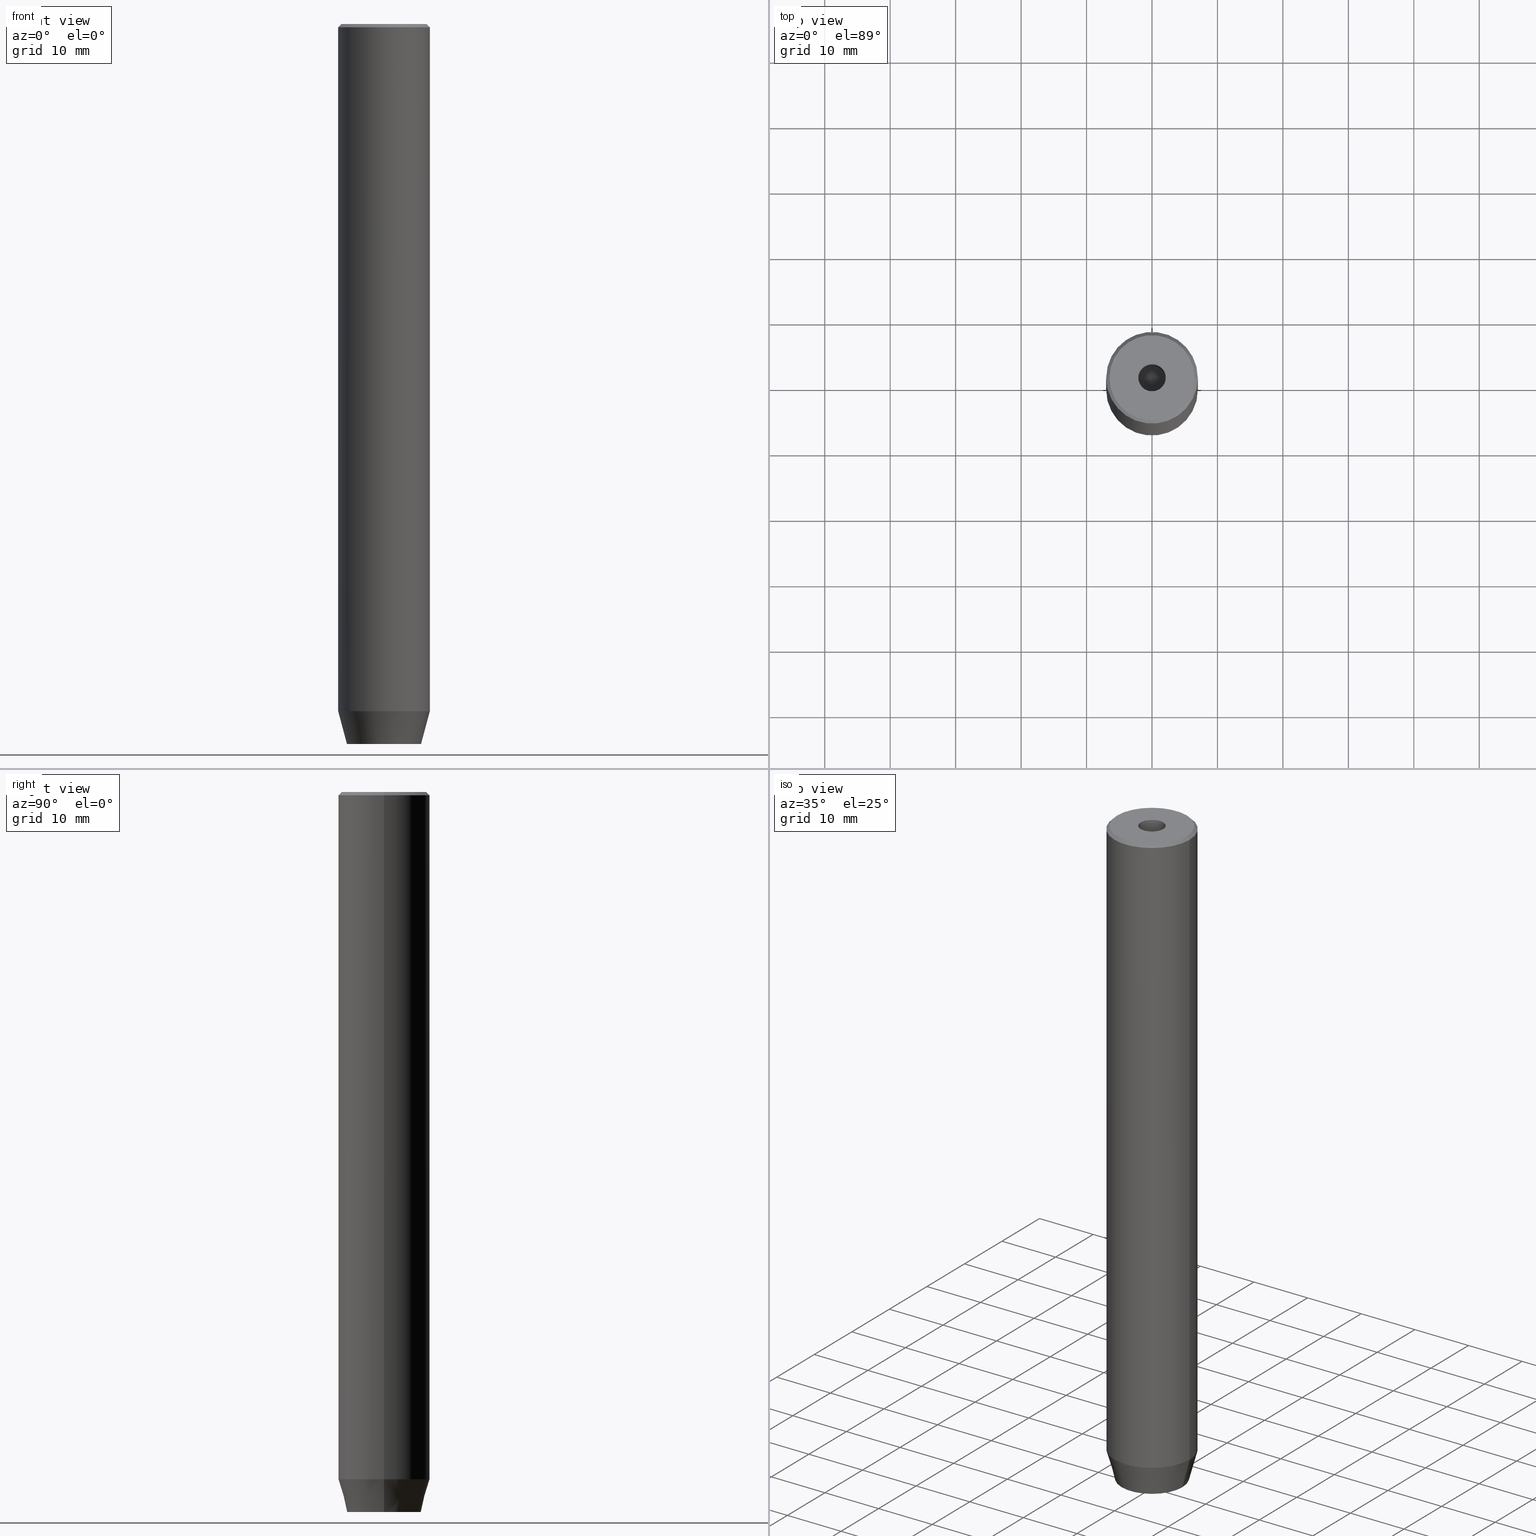
[diagram: canonical four-view strip — front | top / right | iso, engineering-drawing reading convention]
A machine part, canonical four-view strip (front | top / right | iso — engineering-drawing reading convention). The complete STEP part file that produces these views, byte-faithful:
ISO-10303-21;
HEADER;
FILE_DESCRIPTION (( 'STEP AP203' ),
    '1' );
FILE_NAME ('fff1.STEP',
    '2024-01-02T21:52:50',
    ( '' ),
    ( '' ),
    'SwSTEP 2.0',
    'SolidWorks 2019',
    '' );
FILE_SCHEMA (( 'CONFIG_CONTROL_DESIGN' ));
ENDSEC;

DATA;
#1 = DIRECTION ( 'NONE',  ( 0.2588190451025213501, 0.000000000000000000, 0.9659258262890680902 ) ) ;
#2 = PRODUCT_RELATED_PRODUCT_CATEGORY ( 'detail', '', ( #445 ) ) ;
#3 = DATE_AND_TIME ( #380, #549 ) ;
#4 = ORIENTED_EDGE ( 'NONE', *, *, #92, .F. ) ;
#5 = DIRECTION ( 'NONE',  ( -0.000000000000000000, -0.000000000000000000, 1.000000000000000000 ) ) ;
#6 = APPROVAL_ROLE ( '' ) ;
#7 = EDGE_LOOP ( 'NONE', ( #82, #316, #80, #175 ) ) ;
#8 = VECTOR ( 'NONE', #121, 1000.000000000000000 ) ;
#9 = LOCAL_TIME ( 22, 52, 50.00000000000000000, #542 ) ;
#10 = FACE_OUTER_BOUND ( 'NONE', #403, .T. ) ;
#11 = CALENDAR_DATE ( 2024, 2, 1 ) ;
#12 = ADVANCED_FACE ( 'NONE', ( #448 ), #134, .F. ) ;
#13 = ORIENTED_EDGE ( 'NONE', *, *, #307, .T. ) ;
#14 = CARTESIAN_POINT ( 'NONE',  ( 0.000000000000000000, 0.000000000000000000, -105.0000000000000142 ) ) ;
#15 = PERSON_AND_ORGANIZATION ( #174, #524 ) ;
#16 = DIRECTION ( 'NONE',  ( -0.000000000000000000, -0.000000000000000000, 1.000000000000000000 ) ) ;
#17 = ORIENTED_EDGE ( 'NONE', *, *, #520, .F. ) ;
#18 = CARTESIAN_POINT ( 'NONE',  ( -7.000000000000000000, 8.572527594031473190E-16, 0.000000000000000000 ) ) ;
#19 = ORIENTED_EDGE ( 'NONE', *, *, #132, .F. ) ;
#20 = EDGE_CURVE ( 'NONE', #581, #71, #323, .T. ) ;
#21 = DIRECTION ( 'NONE',  ( -0.000000000000000000, -0.000000000000000000, 1.000000000000000000 ) ) ;
#22 = VECTOR ( 'NONE', #5, 1000.000000000000000 ) ;
#23 = EDGE_LOOP ( 'NONE', ( #488, #108 ) ) ;
#24 = LINE ( 'NONE', #154, #487 ) ;
#25 = DIRECTION ( 'NONE',  ( -0.000000000000000000, -0.000000000000000000, 1.000000000000000000 ) ) ;
#26 = EDGE_LOOP ( 'NONE', ( #360, #408, #255, #469 ) ) ;
#27 = CARTESIAN_POINT ( 'NONE',  ( -1.250000000000000444, 2.165063509461097269, -110.0000000000000142 ) ) ;
#28 = DIRECTION ( 'NONE',  ( 1.000000000000000000, 0.000000000000000000, 0.000000000000000000 ) ) ;
#29 = DIRECTION ( 'NONE',  ( -0.8660254037844387076, 0.4999999999999998890, 0.000000000000000000 ) ) ;
#30 = DIRECTION ( 'NONE',  ( -0.000000000000000000, -0.000000000000000000, -1.000000000000000000 ) ) ;
#31 = AXIS2_PLACEMENT_3D ( 'NONE', #212, #302, #203 ) ;
#32 = ADVANCED_FACE ( 'NONE', ( #456 ), #503, .F. ) ;
#33 = APPLICATION_PROTOCOL_DEFINITION ( 'international standard', 'config_control_design', 1994, #489 ) ;
#34 = CARTESIAN_POINT ( 'NONE',  ( 0.000000000000000000, 0.000000000000000000, 0.000000000000000000 ) ) ;
#35 = DESIGN_CONTEXT ( 'detailed design', #181, 'design' ) ;
#36 = FACE_OUTER_BOUND ( 'NONE', #67, .T. ) ;
#37 = ADVANCED_FACE ( 'NONE', ( #185 ), #139, .T. ) ;
#38 = CIRCLE ( 'NONE', #356, 6.499999999999992006 ) ;
#39 = ORIENTED_EDGE ( 'NONE', *, *, #447, .T. ) ;
#40 = VERTEX_POINT ( 'NONE', #287 ) ;
#41 = EDGE_CURVE ( 'NONE', #116, #462, #470, .T. ) ;
#42 = EDGE_LOOP ( 'NONE', ( #300, #378, #205, #60 ) ) ;
#43 = CARTESIAN_POINT ( 'NONE',  ( 0.000000000000000000, 0.000000000000000000, -15.00000000000000000 ) ) ;
#44 = CONICAL_SURFACE ( 'NONE', #75, 7.000000000000000000, 0.2617993877991500740 ) ;
#45 = CC_DESIGN_APPROVAL ( #339, ( #383 ) ) ;
#46 = DIRECTION ( 'NONE',  ( 0.000000000000000000, 0.000000000000000000, 1.000000000000000000 ) ) ;
#47 = COORDINATED_UNIVERSAL_TIME_OFFSET ( 1, 0, .AHEAD. ) ;
#48 = DIRECTION ( 'NONE',  ( 0.5000000000000000000, -0.8660254037844387076, 0.000000000000000000 ) ) ;
#49 = CARTESIAN_POINT ( 'NONE',  ( 0.000000000000000000, 0.000000000000000000, 0.000000000000000000 ) ) ;
#50 = FACE_OUTER_BOUND ( 'NONE', #104, .T. ) ;
#51 = ADVANCED_FACE ( 'NONE', ( #418 ), #66, .T. ) ;
#52 = PERSON_AND_ORGANIZATION ( #174, #524 ) ;
#53 = ORIENTED_EDGE ( 'NONE', *, *, #535, .T. ) ;
#54 = AXIS2_PLACEMENT_3D ( 'NONE', #43, #585, #463 ) ;
#55 = CARTESIAN_POINT ( 'NONE',  ( 7.000000000000000000, 0.000000000000000000, -0.5000000000000186517 ) ) ;
#56 = ORIENTED_EDGE ( 'NONE', *, *, #123, .T. ) ;
#57 = CARTESIAN_POINT ( 'NONE',  ( 2.500000000000000000, 1.443375672974064328, -110.0000000000000142 ) ) ;
#58 = CARTESIAN_POINT ( 'NONE',  ( -2.500000000000000444, -1.443375672974064328, -110.0000000000000142 ) ) ;
#59 = EDGE_CURVE ( 'NONE', #153, #346, #473, .T. ) ;
#60 = ORIENTED_EDGE ( 'NONE', *, *, #330, .T. ) ;
#61 = FACE_OUTER_BOUND ( 'NONE', #442, .T. ) ;
#62 = DIRECTION ( 'NONE',  ( 1.000000000000000000, 0.000000000000000000, 0.000000000000000000 ) ) ;
#63 = VERTEX_POINT ( 'NONE', #58 ) ;
#64 = CARTESIAN_POINT ( 'NONE',  ( -6.499999999999992006, 0.000000000000000000, 0.000000000000000000 ) ) ;
#65 = VECTOR ( 'NONE', #193, 1000.000000000000000 ) ;
#66 = CYLINDRICAL_SURFACE ( 'NONE', #486, 7.000000000000000000 ) ;
#67 = EDGE_LOOP ( 'NONE', ( #19, #265, #267, #428 ) ) ;
#68 = DIRECTION ( 'NONE',  ( 1.000000000000000000, 0.000000000000000000, 0.000000000000000000 ) ) ;
#69 = ADVANCED_BREP_SHAPE_REPRESENTATION ( 'fff1', ( #293, #493 ), #190 ) ;
#70 = DIRECTION ( 'NONE',  ( 1.000000000000000000, 0.000000000000000000, 0.000000000000000000 ) ) ;
#71 = VERTEX_POINT ( 'NONE', #294 ) ;
#72 = DIRECTION ( 'NONE',  ( 0.8660254037844385966, -0.5000000000000001110, 0.000000000000000000 ) ) ;
#73 = ADVANCED_FACE ( 'NONE', ( #506, #103 ), #291, .T. ) ;
#74 = PLANE ( 'NONE',  #443 ) ;
#75 = AXIS2_PLACEMENT_3D ( 'NONE', #14, #236, #453 ) ;
#76 = AXIS2_PLACEMENT_3D ( 'NONE', #179, #365, #540 ) ;
#77 = CYLINDRICAL_SURFACE ( 'NONE', #269, 7.000000000000000000 ) ;
#78 = EDGE_CURVE ( 'NONE', #338, #320, #249, .T. ) ;
#79 = CARTESIAN_POINT ( 'NONE',  ( 0.000000000000000000, 0.000000000000000000, -107.2000000000000171 ) ) ;
#80 = ORIENTED_EDGE ( 'NONE', *, *, #102, .T. ) ;
#81 = CC_DESIGN_APPROVAL ( #425, ( #270 ) ) ;
#82 = ORIENTED_EDGE ( 'NONE', *, *, #117, .F. ) ;
#83 = DATE_AND_TIME ( #508, #454 ) ;
#84 = ORIENTED_EDGE ( 'NONE', *, *, #78, .T. ) ;
#85 = DIRECTION ( 'NONE',  ( -0.000000000000000000, 0.000000000000000000, -1.000000000000000000 ) ) ;
#86 = SECURITY_CLASSIFICATION_LEVEL ( 'unclassified' ) ;
#87 = DIRECTION ( 'NONE',  ( -0.8660254037844387076, -0.5000000000000001110, 0.000000000000000000 ) ) ;
#88 = AXIS2_PLACEMENT_3D ( 'NONE', #49, #412, #195 ) ;
#89 = FACE_OUTER_BOUND ( 'NONE', #318, .T. ) ;
#90 = PERSON_AND_ORGANIZATION_ROLE ( 'design_owner' ) ;
#91 = CARTESIAN_POINT ( 'NONE',  ( 1.249999999999999778, -2.165063509461096380, -107.2000000000000171 ) ) ;
#92 = EDGE_CURVE ( 'NONE', #346, #340, #381, .T. ) ;
#93 = FACE_OUTER_BOUND ( 'NONE', #42, .T. ) ;
#94 = PERSON_AND_ORGANIZATION_ROLE ( 'creator' ) ;
#95 = CARTESIAN_POINT ( 'NONE',  ( 2.500000000000000000, 0.000000000000000000, -110.0000000000000142 ) ) ;
#96 = ORIENTED_EDGE ( 'NONE', *, *, #421, .F. ) ;
#97 = FACE_OUTER_BOUND ( 'NONE', #536, .T. ) ;
#98 = EDGE_LOOP ( 'NONE', ( #334, #382, #422, #280 ) ) ;
#99 = AXIS2_PLACEMENT_3D ( 'NONE', #555, #559, #124 ) ;
#100 = VECTOR ( 'NONE', #161, 1000.000000000000000 ) ;
#101 = DIRECTION ( 'NONE',  ( -0.000000000000000000, -0.000000000000000000, -1.000000000000000000 ) ) ;
#102 = EDGE_CURVE ( 'NONE', #495, #391, #110, .T. ) ;
#103 = FACE_OUTER_BOUND ( 'NONE', #23, .T. ) ;
#104 = EDGE_LOOP ( 'NONE', ( #580, #314 ) ) ;
#105 = DIRECTION ( 'NONE',  ( -0.000000000000000000, -0.000000000000000000, 1.000000000000000000 ) ) ;
#106 = DIRECTION ( 'NONE',  ( -0.000000000000000000, -0.000000000000000000, 1.000000000000000000 ) ) ;
#107 = APPROVAL ( #234, 'NEUR�EN�' ) ;
#108 = ORIENTED_EDGE ( 'NONE', *, *, #260, .T. ) ;
#109 = CARTESIAN_POINT ( 'NONE',  ( -1.084202172485504434E-16, 2.886751345948129543, -107.2000000000000171 ) ) ;
#110 = LINE ( 'NONE', #298, #582 ) ;
#111 = VERTEX_POINT ( 'NONE', #430 ) ;
#112 = DIRECTION ( 'NONE',  ( 0.000000000000000000, -1.000000000000000000, 0.000000000000000000 ) ) ;
#113 = CIRCLE ( 'NONE', #99, 2.099999999999996980 ) ;
#114 = APPROVAL_PERSON_ORGANIZATION ( #461, #425, #6 ) ;
#115 = DIRECTION ( 'NONE',  ( -1.000000000000000000, 0.000000000000000000, -0.000000000000000000 ) ) ;
#116 = VERTEX_POINT ( 'NONE', #509 ) ;
#117 = EDGE_CURVE ( 'NONE', #111, #413, #188, .T. ) ;
#118 = DIRECTION ( 'NONE',  ( -0.8660254037844385966, 0.5000000000000001110, 0.000000000000000000 ) ) ;
#119 = DIRECTION ( 'NONE',  ( 0.000000000000000000, 0.000000000000000000, -1.000000000000000000 ) ) ;
#120 = EDGE_LOOP ( 'NONE', ( #543, #284, #96, #271 ) ) ;
#121 = DIRECTION ( 'NONE',  ( -0.000000000000000000, -0.000000000000000000, -1.000000000000000000 ) ) ;
#122 = VECTOR ( 'NONE', #87, 999.9999999999998863 ) ;
#123 = EDGE_CURVE ( 'NONE', #496, #581, #329, .T. ) ;
#124 = DIRECTION ( 'NONE',  ( 1.000000000000000000, 0.000000000000000000, 0.000000000000000000 ) ) ;
#125 = VECTOR ( 'NONE', #72, 1000.000000000000000 ) ;
#126 = CARTESIAN_POINT ( 'NONE',  ( 2.500000000000000000, -1.443375672974064106, -107.2000000000000171 ) ) ;
#127 = CC_DESIGN_PERSON_AND_ORGANIZATION_ASSIGNMENT ( #52, #145, ( #270 ) ) ;
#128 = ORIENTED_EDGE ( 'NONE', *, *, #272, .T. ) ;
#129 = ORIENTED_EDGE ( 'NONE', *, *, #477, .T. ) ;
#130 = VECTOR ( 'NONE', #333, 1000.000000000000000 ) ;
#131 = ORIENTED_EDGE ( 'NONE', *, *, #132, .T. ) ;
#132 = EDGE_CURVE ( 'NONE', #116, #197, #113, .T. ) ;
#133 = FACE_OUTER_BOUND ( 'NONE', #120, .T. ) ;
#134 = PLANE ( 'NONE',  #513 ) ;
#135 = DIRECTION ( 'NONE',  ( 0.000000000000000000, 0.000000000000000000, -1.000000000000000000 ) ) ;
#136 = PERSON_AND_ORGANIZATION ( #174, #524 ) ;
#137 = ADVANCED_FACE ( 'NONE', ( #353 ), #310, .T. ) ;
#138 = EDGE_LOOP ( 'NONE', ( #515, #129, #306, #262, #289, #177 ) ) ;
#139 = CONICAL_SURFACE ( 'NONE', #202, 7.000000000000000000, 0.2617993877991500740 ) ;
#140 = AXIS2_PLACEMENT_3D ( 'NONE', #561, #105, #472 ) ;
#141 = DIRECTION ( 'NONE',  ( -0.000000000000000000, -0.000000000000000000, -1.000000000000000000 ) ) ;
#142 = APPROVAL_STATUS ( 'not_yet_approved' ) ;
#143 = DIRECTION ( 'NONE',  ( 0.7071067811865402453, 8.659560562354845344E-17, -0.7071067811865549002 ) ) ;
#144 = CARTESIAN_POINT ( 'NONE',  ( -2.500000000000000444, 0.000000000000000000, -107.2000000000000171 ) ) ;
#145 = PERSON_AND_ORGANIZATION_ROLE ( 'creator' ) ;
#146 = ORIENTED_EDGE ( 'NONE', *, *, #215, .F. ) ;
#147 = ADVANCED_FACE ( 'NONE', ( #349 ), #77, .T. ) ;
#148 = DIRECTION ( 'NONE',  ( 0.000000000000000000, 1.000000000000000000, 0.000000000000000000 ) ) ;
#149 = APPROVAL_DATE_TIME ( #3, #339 ) ;
#150 = ORIENTED_EDGE ( 'NONE', *, *, #557, .F. ) ;
#151 = VECTOR ( 'NONE', #101, 1000.000000000000000 ) ;
#152 = LINE ( 'NONE', #436, #172 ) ;
#153 = VERTEX_POINT ( 'NONE', #158 ) ;
#154 = CARTESIAN_POINT ( 'NONE',  ( 2.500000000000000000, 0.000000000000000000, -107.2000000000000171 ) ) ;
#155 = CARTESIAN_POINT ( 'NONE',  ( 0.000000000000000000, 0.000000000000000000, 0.000000000000000000 ) ) ;
#156 = ORIENTED_EDGE ( 'NONE', *, *, #168, .T. ) ;
#157 = DIRECTION ( 'NONE',  ( 1.000000000000000000, 0.000000000000000000, 0.000000000000000000 ) ) ;
#158 = CARTESIAN_POINT ( 'NONE',  ( 5.660254037844381969, 0.000000000000000000, -110.0000000000000142 ) ) ;
#159 = ADVANCED_FACE ( 'NONE', ( #312 ), #74, .T. ) ;
#160 = ORIENTED_EDGE ( 'NONE', *, *, #243, .T. ) ;
#161 = DIRECTION ( 'NONE',  ( -0.000000000000000000, -0.000000000000000000, -1.000000000000000000 ) ) ;
#162 = VECTOR ( 'NONE', #342, 1000.000000000000000 ) ;
#163 = CIRCLE ( 'NONE', #226, 2.099999999999998757 ) ;
#164 = DIRECTION ( 'NONE',  ( 0.000000000000000000, 0.000000000000000000, -1.000000000000000000 ) ) ;
#165 = PLANE ( 'NONE',  #31 ) ;
#166 = DIRECTION ( 'NONE',  ( -0.000000000000000000, -0.000000000000000000, 1.000000000000000000 ) ) ;
#167 = ORIENTED_EDGE ( 'NONE', *, *, #520, .T. ) ;
#168 = EDGE_CURVE ( 'NONE', #413, #391, #395, .T. ) ;
#169 = CARTESIAN_POINT ( 'NONE',  ( 7.000000000000000000, 0.000000000000000000, -105.0000000000000142 ) ) ;
#170 = UNCERTAINTY_MEASURE_WITH_UNIT (LENGTH_MEASURE( 1.000000000000000082E-05 ), #384, 'distance_accuracy_value', 'NONE');
#171 = CLOSED_SHELL ( 'NONE', ( #207, #484, #433, #37, #51, #375, #73, #147, #295, #137, #494, #315, #12, #32, #286, #583, #159, #404, #361 ) ) ;
#172 = VECTOR ( 'NONE', #253, 1000.000000000000000 ) ;
#173 = CARTESIAN_POINT ( 'NONE',  ( 0.000000000000000000, -2.886751345948128211, -107.2000000000000171 ) ) ;
#174 = PERSON ( 'NEUR�EN�', 'NEUR�EN�', 'NEUR�EN�', ('NEUR�EN�'), ('NEUR�EN�'), ('NEUR�EN�') ) ;
#175 = ORIENTED_EDGE ( 'NONE', *, *, #168, .F. ) ;
#176 = EDGE_CURVE ( 'NONE', #197, #116, #220, .T. ) ;
#177 = ORIENTED_EDGE ( 'NONE', *, *, #401, .T. ) ;
#178 = ORIENTED_EDGE ( 'NONE', *, *, #268, .F. ) ;
#179 = CARTESIAN_POINT ( 'NONE',  ( 0.000000000000000000, 0.000000000000000000, -0.5000000000000186517 ) ) ;
#180 = COORDINATED_UNIVERSAL_TIME_OFFSET ( 1, 0, .AHEAD. ) ;
#181 = APPLICATION_CONTEXT ( 'configuration controlled 3d designs of mechanical parts and assemblies' ) ;
#182 = DIRECTION ( 'NONE',  ( 1.000000000000000000, 0.000000000000000000, 0.000000000000000000 ) ) ;
#183 = EDGE_CURVE ( 'NONE', #235, #71, #530, .T. ) ;
#184 = MECHANICAL_CONTEXT ( 'NONE', #489, 'mechanical' ) ;
#185 = FACE_OUTER_BOUND ( 'NONE', #309, .T. ) ;
#186 = CARTESIAN_POINT ( 'NONE',  ( 2.500000000000000000, 0.000000000000000000, -107.2000000000000171 ) ) ;
#187 = CARTESIAN_POINT ( 'NONE',  ( 0.000000000000000000, 0.000000000000000000, 0.000000000000000000 ) ) ;
#188 = LINE ( 'NONE', #552, #532 ) ;
#189 = AXIS2_PLACEMENT_3D ( 'NONE', #577, #305, #482 ) ;
#190 =( GEOMETRIC_REPRESENTATION_CONTEXT ( 3 ) GLOBAL_UNCERTAINTY_ASSIGNED_CONTEXT ( ( #170 ) ) GLOBAL_UNIT_ASSIGNED_CONTEXT ( ( #384, #399, #439 ) ) REPRESENTATION_CONTEXT ( 'NONE', 'WORKASPACE' ) );
#191 = PLANE ( 'NONE',  #238 ) ;
#192 = COORDINATED_UNIVERSAL_TIME_OFFSET ( 1, 0, .AHEAD. ) ;
#193 = DIRECTION ( 'NONE',  ( -0.2588190451025213501, 3.169619151431772337E-17, 0.9659258262890680902 ) ) ;
#194 = ORIENTED_EDGE ( 'NONE', *, *, #541, .F. ) ;
#195 = DIRECTION ( 'NONE',  ( 1.000000000000000000, 0.000000000000000000, 0.000000000000000000 ) ) ;
#196 = DIRECTION ( 'NONE',  ( -0.000000000000000000, -0.000000000000000000, 1.000000000000000000 ) ) ;
#197 = VERTEX_POINT ( 'NONE', #398 ) ;
#198 = DIRECTION ( 'NONE',  ( 0.8660254037844385966, 0.5000000000000001110, 0.000000000000000000 ) ) ;
#199 = DIRECTION ( 'NONE',  ( 1.000000000000000000, 0.000000000000000000, 0.000000000000000000 ) ) ;
#200 = AXIS2_PLACEMENT_3D ( 'NONE', #393, #25, #214 ) ;
#201 = ORIENTED_EDGE ( 'NONE', *, *, #541, .T. ) ;
#202 = AXIS2_PLACEMENT_3D ( 'NONE', #547, #16, #514 ) ;
#203 = DIRECTION ( 'NONE',  ( -0.8660254037844385966, -0.5000000000000001110, 0.000000000000000000 ) ) ;
#204 = CARTESIAN_POINT ( 'NONE',  ( -7.000000000000000000, 8.572527594031473190E-16, -105.0000000000000142 ) ) ;
#205 = ORIENTED_EDGE ( 'NONE', *, *, #401, .F. ) ;
#206 = DIRECTION ( 'NONE',  ( -0.000000000000000000, -0.000000000000000000, 1.000000000000000000 ) ) ;
#207 = ADVANCED_FACE ( 'NONE', ( #36 ), #218, .F. ) ;
#208 = LINE ( 'NONE', #569, #500 ) ;
#209 = ORIENTED_EDGE ( 'NONE', *, *, #441, .T. ) ;
#210 = CARTESIAN_POINT ( 'NONE',  ( 2.500000000000000000, -1.443375672974064106, -110.0000000000000142 ) ) ;
#211 = DIRECTION ( 'NONE',  ( -0.8571673007021113344, 1.049727191138617463E-16, 0.5150380749100558209 ) ) ;
#212 = CARTESIAN_POINT ( 'NONE',  ( -1.250000000000000444, 2.165063509461097269, -107.2000000000000171 ) ) ;
#213 = AXIS2_PLACEMENT_3D ( 'NONE', #155, #247, #62 ) ;
#214 = DIRECTION ( 'NONE',  ( 1.000000000000000000, 0.000000000000000000, 0.000000000000000000 ) ) ;
#215 = EDGE_CURVE ( 'NONE', #231, #581, #402, .T. ) ;
#216 = CARTESIAN_POINT ( 'NONE',  ( 0.000000000000000000, 0.000000000000000000, -105.0000000000000142 ) ) ;
#217 = CC_DESIGN_PERSON_AND_ORGANIZATION_ASSIGNMENT ( #136, #326, ( #385 ) ) ;
#218 = CYLINDRICAL_SURFACE ( 'NONE', #200, 2.099999999999997868 ) ;
#219 = VERTEX_POINT ( 'NONE', #573 ) ;
#220 = CIRCLE ( 'NONE', #263, 2.099999999999996980 ) ;
#221 = LOCAL_TIME ( 22, 52, 50.00000000000000000, #192 ) ;
#222 = EDGE_CURVE ( 'NONE', #63, #320, #490, .T. ) ;
#223 = EDGE_LOOP ( 'NONE', ( #39, #201, #370, #359 ) ) ;
#224 = CYLINDRICAL_SURFACE ( 'NONE', #88, 2.099999999999997868 ) ;
#225 = VECTOR ( 'NONE', #30, 1000.000000000000000 ) ;
#226 = AXIS2_PLACEMENT_3D ( 'NONE', #568, #478, #68 ) ;
#227 = ORIENTED_EDGE ( 'NONE', *, *, #176, .T. ) ;
#228 = EDGE_CURVE ( 'NONE', #235, #219, #266, .T. ) ;
#229 = PRODUCT_DEFINITION_SHAPE ( 'NONE', 'NONE',  #383 ) ;
#230 = DIRECTION ( 'NONE',  ( 0.000000000000000000, 0.000000000000000000, -1.000000000000000000 ) ) ;
#231 = VERTEX_POINT ( 'NONE', #126 ) ;
#232 = CC_DESIGN_PERSON_AND_ORGANIZATION_ASSIGNMENT ( #242, #94, ( #383 ) ) ;
#233 = CARTESIAN_POINT ( 'NONE',  ( 2.500000000000000000, 1.443375672974064328, -107.2000000000000171 ) ) ;
#234 = APPROVAL_STATUS ( 'not_yet_approved' ) ;
#235 = VERTEX_POINT ( 'NONE', #440 ) ;
#236 = DIRECTION ( 'NONE',  ( -0.000000000000000000, -0.000000000000000000, 1.000000000000000000 ) ) ;
#237 = PERSON_AND_ORGANIZATION ( #174, #524 ) ;
#238 = AXIS2_PLACEMENT_3D ( 'NONE', #376, #135, #501 ) ;
#239 = APPROVAL_PERSON_ORGANIZATION ( #15, #107, #554 ) ;
#240 = ORIENTED_EDGE ( 'NONE', *, *, #123, .F. ) ;
#241 = CARTESIAN_POINT ( 'NONE',  ( -5.660254037844381969, 7.752169791919238770E-16, -110.0000000000000142 ) ) ;
#242 = PERSON_AND_ORGANIZATION ( #174, #524 ) ;
#243 = EDGE_CURVE ( 'NONE', #340, #258, #299, .T. ) ;
#244 = CARTESIAN_POINT ( 'NONE',  ( -2.099999999999997868, 2.571758278209438999E-16, 0.000000000000000000 ) ) ;
#245 = ORIENTED_EDGE ( 'NONE', *, *, #579, .T. ) ;
#246 = LINE ( 'NONE', #429, #539 ) ;
#247 = DIRECTION ( 'NONE',  ( 0.000000000000000000, -0.000000000000000000, 1.000000000000000000 ) ) ;
#248 = DIRECTION ( 'NONE',  ( 0.5000000000000001110, 0.8660254037844385966, -0.000000000000000000 ) ) ;
#249 = LINE ( 'NONE', #427, #162 ) ;
#250 = VECTOR ( 'NONE', #148, 1000.000000000000000 ) ;
#251 = ORIENTED_EDGE ( 'NONE', *, *, #498, .T. ) ;
#252 = VECTOR ( 'NONE', #198, 1000.000000000000000 ) ;
#253 = DIRECTION ( 'NONE',  ( 0.8571673007021113344, 0.000000000000000000, 0.5150380749100558209 ) ) ;
#254 = DIRECTION ( 'NONE',  ( 1.000000000000000000, 0.000000000000000000, 0.000000000000000000 ) ) ;
#255 = ORIENTED_EDGE ( 'NONE', *, *, #566, .F. ) ;
#256 = CARTESIAN_POINT ( 'NONE',  ( 1.249999999999999778, -2.165063509461096380, -107.2000000000000171 ) ) ;
#257 = DIRECTION ( 'NONE',  ( -0.000000000000000000, -0.000000000000000000, 1.000000000000000000 ) ) ;
#258 = VERTEX_POINT ( 'NONE', #169 ) ;
#259 = DIRECTION ( 'NONE',  ( -0.000000000000000000, -0.000000000000000000, 1.000000000000000000 ) ) ;
#260 = EDGE_CURVE ( 'NONE', #111, #495, #38, .T. ) ;
#261 = CARTESIAN_POINT ( 'NONE',  ( 0.000000000000000000, 0.000000000000000000, -15.00000000000000000 ) ) ;
#262 = ORIENTED_EDGE ( 'NONE', *, *, #566, .T. ) ;
#263 = AXIS2_PLACEMENT_3D ( 'NONE', #261, #303, #437 ) ;
#264 = DIRECTION ( 'NONE',  ( -0.8660254037844387076, 0.4999999999999998890, 0.000000000000000000 ) ) ;
#265 = ORIENTED_EDGE ( 'NONE', *, *, #41, .T. ) ;
#266 = LINE ( 'NONE', #390, #537 ) ;
#267 = ORIENTED_EDGE ( 'NONE', *, *, #268, .T. ) ;
#268 = EDGE_CURVE ( 'NONE', #462, #40, #523, .T. ) ;
#269 = AXIS2_PLACEMENT_3D ( 'NONE', #526, #166, #308 ) ;
#270 = PRODUCT_DEFINITION_FORMATION_WITH_SPECIFIED_SOURCE ( 'LIBOVOLN�', '', #445, .NOT_KNOWN. ) ;
#271 = ORIENTED_EDGE ( 'NONE', *, *, #102, .F. ) ;
#272 = EDGE_CURVE ( 'NONE', #296, #116, #208, .T. ) ;
#273 = CARTESIAN_POINT ( 'NONE',  ( -1.249999999999999556, -2.165063509461096825, -107.2000000000000171 ) ) ;
#274 = LINE ( 'NONE', #409, #301 ) ;
#275 = VECTOR ( 'NONE', #141, 1000.000000000000000 ) ;
#276 = DATE_TIME_ROLE ( 'classification_date' ) ;
#277 = DIRECTION ( 'NONE',  ( 0.8660254037844387076, -0.4999999999999998890, 0.000000000000000000 ) ) ;
#278 = CARTESIAN_POINT ( 'NONE',  ( 7.000000000000000000, 0.000000000000000000, -105.0000000000000142 ) ) ;
#279 = APPROVAL_DATE_TIME ( #83, #107 ) ;
#280 = ORIENTED_EDGE ( 'NONE', *, *, #183, .T. ) ;
#281 = LINE ( 'NONE', #460, #151 ) ;
#282 = DATE_TIME_ROLE ( 'creation_date' ) ;
#283 = DIRECTION ( 'NONE',  ( 0.000000000000000000, -1.000000000000000000, 0.000000000000000000 ) ) ;
#284 = ORIENTED_EDGE ( 'NONE', *, *, #117, .T. ) ;
#285 = CARTESIAN_POINT ( 'NONE',  ( -2.500000000000000444, 1.443375672974064772, -107.2000000000000171 ) ) ;
#286 = ADVANCED_FACE ( 'NONE', ( #10 ), #507, .F. ) ;
#287 = CARTESIAN_POINT ( 'NONE',  ( 2.099999999999998757, 0.000000000000000000, -1.990051048614449116E-16 ) ) ;
#288 = CIRCLE ( 'NONE', #451, 5.660254037844381969 ) ;
#289 = ORIENTED_EDGE ( 'NONE', *, *, #228, .T. ) ;
#290 = LINE ( 'NONE', #109, #100 ) ;
#291 = PLANE ( 'NONE',  #213 ) ;
#292 = CARTESIAN_POINT ( 'NONE',  ( -1.250000000000000444, 2.165063509461097269, -107.2000000000000171 ) ) ;
#293 = MANIFOLD_SOLID_BREP ( 'Vrt�k z�vitn�ku pro M5 z�vit1', #171 ) ;
#294 = CARTESIAN_POINT ( 'NONE',  ( 0.000000000000000000, -2.886751345948128211, -110.0000000000000142 ) ) ;
#295 = ADVANCED_FACE ( 'NONE', ( #89 ), #44, .T. ) ;
#296 = VERTEX_POINT ( 'NONE', #550 ) ;
#297 = CARTESIAN_POINT ( 'NONE',  ( -2.099999999999998757, 2.571758278209439985E-16, -1.990051048614449116E-16 ) ) ;
#298 = CARTESIAN_POINT ( 'NONE',  ( -6.499999999999992006, 0.000000000000000000, 0.000000000000000000 ) ) ;
#299 = CIRCLE ( 'NONE', #562, 7.000000000000000000 ) ;
#300 = ORIENTED_EDGE ( 'NONE', *, *, #222, .T. ) ;
#301 = VECTOR ( 'NONE', #21, 1000.000000000000000 ) ;
#302 = DIRECTION ( 'NONE',  ( -0.5000000000000001110, 0.8660254037844385966, 0.000000000000000000 ) ) ;
#303 = DIRECTION ( 'NONE',  ( -0.000000000000000000, -0.000000000000000000, 1.000000000000000000 ) ) ;
#304 = ORIENTED_EDGE ( 'NONE', *, *, #357, .F. ) ;
#305 = DIRECTION ( 'NONE',  ( 0.000000000000000000, 0.000000000000000000, -1.000000000000000000 ) ) ;
#306 = ORIENTED_EDGE ( 'NONE', *, *, #512, .T. ) ;
#307 = EDGE_CURVE ( 'NONE', #153, #258, #331, .T. ) ;
#308 = DIRECTION ( 'NONE',  ( 1.000000000000000000, 0.000000000000000000, 0.000000000000000000 ) ) ;
#309 = EDGE_LOOP ( 'NONE', ( #476, #556, #424, #527 ) ) ;
#310 = CONICAL_SURFACE ( 'NONE', #415, 6.499999999999992006, 0.7853981633974380649 ) ;
#311 = CONICAL_SURFACE ( 'NONE', #407, 6.499999999999992006, 0.7853981633974380649 ) ;
#312 = FACE_OUTER_BOUND ( 'NONE', #138, .T. ) ;
#313 = DIRECTION ( 'NONE',  ( -1.000000000000000000, 0.000000000000000000, 0.000000000000000000 ) ) ;
#314 = ORIENTED_EDGE ( 'NONE', *, *, #351, .F. ) ;
#315 = ADVANCED_FACE ( 'NONE', ( #93 ), #414, .F. ) ;
#316 = ORIENTED_EDGE ( 'NONE', *, *, #464, .F. ) ;
#317 = VECTOR ( 'NONE', #516, 1000.000000000000000 ) ;
#318 = EDGE_LOOP ( 'NONE', ( #4, #471, #13, #446 ) ) ;
#319 = CC_DESIGN_PERSON_AND_ORGANIZATION_ASSIGNMENT ( #586, #90, ( #445 ) ) ;
#320 = VERTEX_POINT ( 'NONE', #379 ) ;
#321 = CARTESIAN_POINT ( 'NONE',  ( 0.000000000000000000, 0.000000000000000000, 0.000000000000000000 ) ) ;
#322 = CC_DESIGN_PERSON_AND_ORGANIZATION_ASSIGNMENT ( #237, #369, ( #270 ) ) ;
#323 = LINE ( 'NONE', #499, #122 ) ;
#324 = LINE ( 'NONE', #553, #22 ) ;
#325 = CONICAL_SURFACE ( 'NONE', #54, 2.099999999999996980, 1.029744258676652535 ) ;
#326 = PERSON_AND_ORGANIZATION_ROLE ( 'classification_officer' ) ;
#327 = CARTESIAN_POINT ( 'NONE',  ( -2.500000000000000444, 0.000000000000000000, -107.2000000000000171 ) ) ;
#328 = APPROVAL_DATE_TIME ( #551, #425 ) ;
#329 = LINE ( 'NONE', #95, #372 ) ;
#330 = EDGE_CURVE ( 'NONE', #219, #63, #368, .T. ) ;
#331 = LINE ( 'NONE', #278, #492 ) ;
#332 = CALENDAR_DATE ( 2024, 2, 1 ) ;
#333 = DIRECTION ( 'NONE',  ( -0.000000000000000000, -0.000000000000000000, 1.000000000000000000 ) ) ;
#334 = ORIENTED_EDGE ( 'NONE', *, *, #529, .T. ) ;
#335 = CARTESIAN_POINT ( 'NONE',  ( 0.000000000000000000, 0.000000000000000000, -110.0000000000000142 ) ) ;
#336 = CALENDAR_DATE ( 2024, 2, 1 ) ;
#337 = APPROVAL_PERSON_ORGANIZATION ( #416, #339, #410 ) ;
#338 = VERTEX_POINT ( 'NONE', #285 ) ;
#339 = APPROVAL ( #142, 'NEUR�EN�' ) ;
#340 = VERTEX_POINT ( 'NONE', #406 ) ;
#341 = LINE ( 'NONE', #292, #317 ) ;
#342 = DIRECTION ( 'NONE',  ( -0.000000000000000000, -0.000000000000000000, -1.000000000000000000 ) ) ;
#343 = VERTEX_POINT ( 'NONE', #233 ) ;
#344 = CARTESIAN_POINT ( 'NONE',  ( 1.250000000000000222, 2.165063509461096825, -107.2000000000000171 ) ) ;
#345 = AXIS2_PLACEMENT_3D ( 'NONE', #327, #558, #46 ) ;
#346 = VERTEX_POINT ( 'NONE', #241 ) ;
#347 = CIRCLE ( 'NONE', #374, 7.000000000000000000 ) ;
#348 = LINE ( 'NONE', #18, #475 ) ;
#349 = FACE_OUTER_BOUND ( 'NONE', #518, .T. ) ;
#350 = ORIENTED_EDGE ( 'NONE', *, *, #272, .F. ) ;
#351 = EDGE_CURVE ( 'NONE', #346, #153, #288, .T. ) ;
#352 = CARTESIAN_POINT ( 'NONE',  ( 0.000000000000000000, 0.000000000000000000, -105.0000000000000142 ) ) ;
#353 = FACE_OUTER_BOUND ( 'NONE', #7, .T. ) ;
#354 = ORIENTED_EDGE ( 'NONE', *, *, #477, .F. ) ;
#355 = DIRECTION ( 'NONE',  ( -0.000000000000000000, -0.000000000000000000, 1.000000000000000000 ) ) ;
#356 = AXIS2_PLACEMENT_3D ( 'NONE', #358, #355, #70 ) ;
#357 = EDGE_CURVE ( 'NONE', #343, #496, #281, .T. ) ;
#358 = CARTESIAN_POINT ( 'NONE',  ( 0.000000000000000000, 0.000000000000000000, 0.000000000000000000 ) ) ;
#359 = ORIENTED_EDGE ( 'NONE', *, *, #394, .F. ) ;
#360 = ORIENTED_EDGE ( 'NONE', *, *, #20, .T. ) ;
#361 = ADVANCED_FACE ( 'NONE', ( #458 ), #224, .F. ) ;
#362 = AXIS2_PLACEMENT_3D ( 'NONE', #91, #48, #411 ) ;
#363 = CIRCLE ( 'NONE', #584, 6.499999999999992006 ) ;
#364 = ORIENTED_EDGE ( 'NONE', *, *, #20, .F. ) ;
#365 = DIRECTION ( 'NONE',  ( 0.000000000000000000, 0.000000000000000000, -1.000000000000000000 ) ) ;
#366 = APPLICATION_PROTOCOL_DEFINITION ( 'international standard', 'config_control_design', 1994, #181 ) ;
#367 = EDGE_LOOP ( 'NONE', ( #431, #534, #388, #364, #240, #150 ) ) ;
#368 = LINE ( 'NONE', #504, #275 ) ;
#369 = PERSON_AND_ORGANIZATION_ROLE ( 'design_supplier' ) ;
#370 = ORIENTED_EDGE ( 'NONE', *, *, #421, .T. ) ;
#371 = LINE ( 'NONE', #144, #250 ) ;
#372 = VECTOR ( 'NONE', #283, 1000.000000000000000 ) ;
#373 = DATE_AND_TIME ( #11, #444 ) ;
#374 = AXIS2_PLACEMENT_3D ( 'NONE', #352, #481, #157 ) ;
#375 = ADVANCED_FACE ( 'NONE', ( #511, #50 ), #191, .T. ) ;
#376 = CARTESIAN_POINT ( 'NONE',  ( 0.000000000000000000, 5.660254037844381969, -110.0000000000000142 ) ) ;
#377 = DATE_AND_TIME ( #336, #221 ) ;
#378 = ORIENTED_EDGE ( 'NONE', *, *, #78, .F. ) ;
#379 = CARTESIAN_POINT ( 'NONE',  ( -2.500000000000000444, 1.443375672974064772, -110.0000000000000142 ) ) ;
#380 = CALENDAR_DATE ( 2024, 2, 1 ) ;
#381 = LINE ( 'NONE', #204, #65 ) ;
#382 = ORIENTED_EDGE ( 'NONE', *, *, #330, .F. ) ;
#383 = PRODUCT_DEFINITION ( 'NEZN�M�', '', #270, #35 ) ;
#384 =( LENGTH_UNIT ( ) NAMED_UNIT ( * ) SI_UNIT ( .MILLI., .METRE. ) );
#385 = SECURITY_CLASSIFICATION ( '', '', #86 ) ;
#386 = ORIENTED_EDGE ( 'NONE', *, *, #557, .T. ) ;
#387 = LINE ( 'NONE', #344, #125 ) ;
#388 = ORIENTED_EDGE ( 'NONE', *, *, #529, .F. ) ;
#389 = DIRECTION ( 'NONE',  ( 0.8660254037844385966, -0.5000000000000001110, 0.000000000000000000 ) ) ;
#390 = CARTESIAN_POINT ( 'NONE',  ( -1.249999999999999556, -2.165063509461096825, -107.2000000000000171 ) ) ;
#391 = VERTEX_POINT ( 'NONE', #449 ) ;
#392 = PLANE ( 'NONE',  #465 ) ;
#393 = CARTESIAN_POINT ( 'NONE',  ( 0.000000000000000000, 0.000000000000000000, 0.000000000000000000 ) ) ;
#394 = EDGE_CURVE ( 'NONE', #258, #413, #324, .T. ) ;
#395 = CIRCLE ( 'NONE', #189, 7.000000000000000000 ) ;
#396 = CC_DESIGN_SECURITY_CLASSIFICATION ( #385, ( #270 ) ) ;
#397 = LINE ( 'NONE', #528, #438 ) ;
#398 = CARTESIAN_POINT ( 'NONE',  ( 2.099999999999996980, 0.000000000000000000, -15.00000000000000000 ) ) ;
#399 =( NAMED_UNIT ( * ) PLANE_ANGLE_UNIT ( ) SI_UNIT ( $, .RADIAN. ) );
#400 = CARTESIAN_POINT ( 'NONE',  ( -2.500000000000000444, 0.000000000000000000, -110.0000000000000142 ) ) ;
#401 = EDGE_CURVE ( 'NONE', #219, #338, #371, .T. ) ;
#402 = LINE ( 'NONE', #434, #8 ) ;
#403 = EDGE_LOOP ( 'NONE', ( #56, #146, #459, #564 ) ) ;
#404 = ADVANCED_FACE ( 'NONE', ( #97 ), #325, .F. ) ;
#405 = VECTOR ( 'NONE', #485, 1000.000000000000000 ) ;
#406 = CARTESIAN_POINT ( 'NONE',  ( -7.000000000000000000, 8.572527594031473190E-16, -105.0000000000000142 ) ) ;
#407 = AXIS2_PLACEMENT_3D ( 'NONE', #321, #230, #497 ) ;
#408 = ORIENTED_EDGE ( 'NONE', *, *, #183, .F. ) ;
#409 = CARTESIAN_POINT ( 'NONE',  ( 2.099999999999997868, 0.000000000000000000, 0.000000000000000000 ) ) ;
#410 = APPROVAL_ROLE ( '' ) ;
#411 = DIRECTION ( 'NONE',  ( 0.8660254037844385966, 0.4999999999999999445, 0.000000000000000000 ) ) ;
#412 = DIRECTION ( 'NONE',  ( -0.000000000000000000, -0.000000000000000000, 1.000000000000000000 ) ) ;
#413 = VERTEX_POINT ( 'NONE', #55 ) ;
#414 = PLANE ( 'NONE',  #345 ) ;
#415 = AXIS2_PLACEMENT_3D ( 'NONE', #34, #164, #313 ) ;
#416 = PERSON_AND_ORGANIZATION ( #174, #524 ) ;
#417 = CONICAL_SURFACE ( 'NONE', #140, 2.099999999999996980, 1.029744258676652535 ) ;
#418 = FACE_OUTER_BOUND ( 'NONE', #223, .T. ) ;
#419 = ORIENTED_EDGE ( 'NONE', *, *, #41, .F. ) ;
#420 = DIRECTION ( 'NONE',  ( -0.000000000000000000, -0.000000000000000000, 1.000000000000000000 ) ) ;
#421 = EDGE_CURVE ( 'NONE', #391, #413, #578, .T. ) ;
#422 = ORIENTED_EDGE ( 'NONE', *, *, #228, .F. ) ;
#423 = DIRECTION ( 'NONE',  ( -0.8660254037844387076, -0.5000000000000001110, 0.000000000000000000 ) ) ;
#424 = ORIENTED_EDGE ( 'NONE', *, *, #447, .F. ) ;
#425 = APPROVAL ( #545, 'NEUR�EN�' ) ;
#426 = DIRECTION ( 'NONE',  ( 1.000000000000000000, 0.000000000000000000, 0.000000000000000000 ) ) ;
#427 = CARTESIAN_POINT ( 'NONE',  ( -2.500000000000000444, 1.443375672974064772, -107.2000000000000171 ) ) ;
#428 = ORIENTED_EDGE ( 'NONE', *, *, #441, .F. ) ;
#429 = CARTESIAN_POINT ( 'NONE',  ( 1.250000000000000222, 2.165063509461096825, -110.0000000000000142 ) ) ;
#430 = CARTESIAN_POINT ( 'NONE',  ( 6.499999999999992006, 8.266365894244629403E-16, 0.000000000000000000 ) ) ;
#431 = ORIENTED_EDGE ( 'NONE', *, *, #579, .F. ) ;
#432 = LINE ( 'NONE', #27, #252 ) ;
#433 = ADVANCED_FACE ( 'NONE', ( #133 ), #311, .T. ) ;
#434 = CARTESIAN_POINT ( 'NONE',  ( 2.500000000000000000, -1.443375672974064106, -107.2000000000000171 ) ) ;
#435 = EDGE_LOOP ( 'NONE', ( #17, #178 ) ) ;
#436 = CARTESIAN_POINT ( 'NONE',  ( 2.099999999999996980, 0.000000000000000000, -15.00000000000000000 ) ) ;
#437 = DIRECTION ( 'NONE',  ( 1.000000000000000000, 0.000000000000000000, 0.000000000000000000 ) ) ;
#438 = VECTOR ( 'NONE', #29, 1000.000000000000114 ) ;
#439 =( NAMED_UNIT ( * ) SI_UNIT ( $, .STERADIAN. ) SOLID_ANGLE_UNIT ( ) );
#440 = CARTESIAN_POINT ( 'NONE',  ( 0.000000000000000000, -2.886751345948128211, -107.2000000000000171 ) ) ;
#441 = EDGE_CURVE ( 'NONE', #197, #40, #274, .T. ) ;
#442 = EDGE_LOOP ( 'NONE', ( #386, #304, #354, #53 ) ) ;
#443 = AXIS2_PLACEMENT_3D ( 'NONE', #79, #119, #115 ) ;
#444 = LOCAL_TIME ( 22, 52, 50.00000000000000000, #47 ) ;
#445 = PRODUCT ( 'fff1', 'fff1', '', ( #184 ) ) ;
#446 = ORIENTED_EDGE ( 'NONE', *, *, #243, .F. ) ;
#447 = EDGE_CURVE ( 'NONE', #258, #340, #347, .T. ) ;
#448 = FACE_OUTER_BOUND ( 'NONE', #98, .T. ) ;
#449 = CARTESIAN_POINT ( 'NONE',  ( -7.000000000000000000, 8.572527594031473190E-16, -0.5000000000000186517 ) ) ;
#450 = SHAPE_DEFINITION_REPRESENTATION ( #229, #69 ) ;
#451 = AXIS2_PLACEMENT_3D ( 'NONE', #335, #420, #182 ) ;
#452 = AXIS2_PLACEMENT_3D ( 'NONE', #466, #106, #199 ) ;
#453 = DIRECTION ( 'NONE',  ( 1.000000000000000000, 0.000000000000000000, 0.000000000000000000 ) ) ;
#454 = LOCAL_TIME ( 22, 52, 50.00000000000000000, #502 ) ;
#455 = DIRECTION ( 'NONE',  ( 0.000000000000000000, 0.000000000000000000, 1.000000000000000000 ) ) ;
#456 = FACE_OUTER_BOUND ( 'NONE', #26, .T. ) ;
#457 = EDGE_CURVE ( 'NONE', #338, #480, #341, .T. ) ;
#458 = FACE_OUTER_BOUND ( 'NONE', #521, .T. ) ;
#459 = ORIENTED_EDGE ( 'NONE', *, *, #512, .F. ) ;
#460 = CARTESIAN_POINT ( 'NONE',  ( 2.500000000000000000, 1.443375672974064328, -107.2000000000000171 ) ) ;
#461 = PERSON_AND_ORGANIZATION ( #174, #524 ) ;
#462 = VERTEX_POINT ( 'NONE', #297 ) ;
#463 = DIRECTION ( 'NONE',  ( 1.000000000000000000, 0.000000000000000000, 0.000000000000000000 ) ) ;
#464 = EDGE_CURVE ( 'NONE', #495, #111, #363, .T. ) ;
#465 = AXIS2_PLACEMENT_3D ( 'NONE', #525, #248, #118 ) ;
#466 = CARTESIAN_POINT ( 'NONE',  ( 0.000000000000000000, 0.000000000000000000, -110.0000000000000142 ) ) ;
#467 = EDGE_LOOP ( 'NONE', ( #483, #128, #131 ) ) ;
#468 = CARTESIAN_POINT ( 'NONE',  ( 0.000000000000000000, 2.886751345948128655, -110.0000000000000142 ) ) ;
#469 = ORIENTED_EDGE ( 'NONE', *, *, #215, .T. ) ;
#470 = LINE ( 'NONE', #244, #130 ) ;
#471 = ORIENTED_EDGE ( 'NONE', *, *, #351, .T. ) ;
#472 = DIRECTION ( 'NONE',  ( 1.000000000000000000, 0.000000000000000000, 0.000000000000000000 ) ) ;
#473 = CIRCLE ( 'NONE', #452, 5.660254037844381969 ) ;
#474 = DIRECTION ( 'NONE',  ( -0.7071067811865402453, 0.000000000000000000, -0.7071067811865549002 ) ) ;
#475 = VECTOR ( 'NONE', #206, 1000.000000000000000 ) ;
#476 = ORIENTED_EDGE ( 'NONE', *, *, #59, .T. ) ;
#477 = EDGE_CURVE ( 'NONE', #480, #343, #387, .T. ) ;
#478 = DIRECTION ( 'NONE',  ( -0.000000000000000000, -0.000000000000000000, 1.000000000000000000 ) ) ;
#479 = DIRECTION ( 'NONE',  ( 1.000000000000000000, 0.000000000000000000, 0.000000000000000000 ) ) ;
#480 = VERTEX_POINT ( 'NONE', #575 ) ;
#481 = DIRECTION ( 'NONE',  ( -0.000000000000000000, -0.000000000000000000, 1.000000000000000000 ) ) ;
#482 = DIRECTION ( 'NONE',  ( 1.000000000000000000, 0.000000000000000000, 0.000000000000000000 ) ) ;
#483 = ORIENTED_EDGE ( 'NONE', *, *, #498, .F. ) ;
#484 = ADVANCED_FACE ( 'NONE', ( #519 ), #417, .F. ) ;
#485 = DIRECTION ( 'NONE',  ( 0.000000000000000000, 1.000000000000000000, 0.000000000000000000 ) ) ;
#486 = AXIS2_PLACEMENT_3D ( 'NONE', #517, #196, #254 ) ;
#487 = VECTOR ( 'NONE', #112, 1000.000000000000000 ) ;
#488 = ORIENTED_EDGE ( 'NONE', *, *, #464, .T. ) ;
#489 = APPLICATION_CONTEXT ( 'configuration controlled 3d designs of mechanical parts and assemblies' ) ;
#490 = LINE ( 'NONE', #400, #405 ) ;
#491 = ORIENTED_EDGE ( 'NONE', *, *, #394, .T. ) ;
#492 = VECTOR ( 'NONE', #1, 1000.000000000000000 ) ;
#493 = AXIS2_PLACEMENT_3D ( 'NONE', #187, #455, #505 ) ;
#494 = ADVANCED_FACE ( 'NONE', ( #565 ), #165, .F. ) ;
#495 = VERTEX_POINT ( 'NONE', #64 ) ;
#496 = VERTEX_POINT ( 'NONE', #57 ) ;
#497 = DIRECTION ( 'NONE',  ( -1.000000000000000000, 0.000000000000000000, 0.000000000000000000 ) ) ;
#498 = EDGE_CURVE ( 'NONE', #296, #197, #152, .T. ) ;
#499 = CARTESIAN_POINT ( 'NONE',  ( 1.249999999999999778, -2.165063509461096380, -110.0000000000000142 ) ) ;
#500 = VECTOR ( 'NONE', #211, 1000.000000000000000 ) ;
#501 = DIRECTION ( 'NONE',  ( -1.000000000000000000, 0.000000000000000000, -0.000000000000000000 ) ) ;
#502 = COORDINATED_UNIVERSAL_TIME_OFFSET ( 1, 0, .AHEAD. ) ;
#503 = PLANE ( 'NONE',  #362 ) ;
#504 = CARTESIAN_POINT ( 'NONE',  ( -2.500000000000000444, -1.443375672974064328, -107.2000000000000171 ) ) ;
#505 = DIRECTION ( 'NONE',  ( 1.000000000000000000, 0.000000000000000000, 0.000000000000000000 ) ) ;
#506 = FACE_BOUND ( 'NONE', #435, .T. ) ;
#507 = PLANE ( 'NONE',  #548 ) ;
#508 = CALENDAR_DATE ( 2024, 2, 1 ) ;
#509 = CARTESIAN_POINT ( 'NONE',  ( -2.099999999999996980, 2.571758278209438013E-16, -15.00000000000000000 ) ) ;
#510 = ORIENTED_EDGE ( 'NONE', *, *, #535, .F. ) ;
#511 = FACE_BOUND ( 'NONE', #367, .T. ) ;
#512 = EDGE_CURVE ( 'NONE', #343, #231, #24, .T. ) ;
#513 = AXIS2_PLACEMENT_3D ( 'NONE', #273, #587, #277 ) ;
#514 = DIRECTION ( 'NONE',  ( 1.000000000000000000, 0.000000000000000000, 0.000000000000000000 ) ) ;
#515 = ORIENTED_EDGE ( 'NONE', *, *, #457, .T. ) ;
#516 = DIRECTION ( 'NONE',  ( 0.8660254037844385966, 0.5000000000000001110, 0.000000000000000000 ) ) ;
#517 = CARTESIAN_POINT ( 'NONE',  ( 0.000000000000000000, 0.000000000000000000, 0.000000000000000000 ) ) ;
#518 = EDGE_LOOP ( 'NONE', ( #194, #160, #491, #156 ) ) ;
#519 = FACE_OUTER_BOUND ( 'NONE', #467, .T. ) ;
#520 = EDGE_CURVE ( 'NONE', #40, #462, #163, .T. ) ;
#521 = EDGE_LOOP ( 'NONE', ( #419, #538, #209, #167 ) ) ;
#522 = CARTESIAN_POINT ( 'NONE',  ( 0.000000000000000000, 0.000000000000000000, 0.000000000000000000 ) ) ;
#523 = CIRCLE ( 'NONE', #572, 2.099999999999998757 ) ;
#524 = ORGANIZATION ( 'NEUR�EN�', 'NEUR�EN�', '' ) ;
#525 = CARTESIAN_POINT ( 'NONE',  ( 1.250000000000000222, 2.165063509461096825, -107.2000000000000171 ) ) ;
#526 = CARTESIAN_POINT ( 'NONE',  ( 0.000000000000000000, 0.000000000000000000, 0.000000000000000000 ) ) ;
#527 = ORIENTED_EDGE ( 'NONE', *, *, #307, .F. ) ;
#528 = CARTESIAN_POINT ( 'NONE',  ( -1.249999999999999556, -2.165063509461096825, -110.0000000000000142 ) ) ;
#529 = EDGE_CURVE ( 'NONE', #71, #63, #397, .T. ) ;
#530 = LINE ( 'NONE', #173, #225 ) ;
#531 = CC_DESIGN_DATE_AND_TIME_ASSIGNMENT ( #373, #282, ( #383 ) ) ;
#532 = VECTOR ( 'NONE', #143, 1000.000000000000114 ) ;
#533 = CARTESIAN_POINT ( 'NONE',  ( 0.000000000000000000, 0.000000000000000000, -1.990051048614449116E-16 ) ) ;
#534 = ORIENTED_EDGE ( 'NONE', *, *, #222, .F. ) ;
#535 = EDGE_CURVE ( 'NONE', #480, #560, #290, .T. ) ;
#536 = EDGE_LOOP ( 'NONE', ( #350, #251, #227 ) ) ;
#537 = VECTOR ( 'NONE', #264, 1000.000000000000114 ) ;
#538 = ORIENTED_EDGE ( 'NONE', *, *, #176, .F. ) ;
#539 = VECTOR ( 'NONE', #389, 1000.000000000000000 ) ;
#540 = DIRECTION ( 'NONE',  ( 1.000000000000000000, 0.000000000000000000, 0.000000000000000000 ) ) ;
#541 = EDGE_CURVE ( 'NONE', #340, #391, #348, .T. ) ;
#542 = COORDINATED_UNIVERSAL_TIME_OFFSET ( 1, 0, .AHEAD. ) ;
#543 = ORIENTED_EDGE ( 'NONE', *, *, #260, .F. ) ;
#544 = DIRECTION ( 'NONE',  ( 1.000000000000000000, 0.000000000000000000, -0.000000000000000000 ) ) ;
#545 = APPROVAL_STATUS ( 'not_yet_approved' ) ;
#546 = CC_DESIGN_DATE_AND_TIME_ASSIGNMENT ( #377, #276, ( #385 ) ) ;
#547 = CARTESIAN_POINT ( 'NONE',  ( 0.000000000000000000, 0.000000000000000000, -105.0000000000000142 ) ) ;
#548 = AXIS2_PLACEMENT_3D ( 'NONE', #186, #544, #85 ) ;
#549 = LOCAL_TIME ( 22, 52, 50.00000000000000000, #180 ) ;
#550 = CARTESIAN_POINT ( 'NONE',  ( -3.982994051648894933E-15, 0.000000000000000000, -16.26180729995787644 ) ) ;
#551 = DATE_AND_TIME ( #332, #9 ) ;
#552 = CARTESIAN_POINT ( 'NONE',  ( 6.499999999999992006, 7.960204194457785616E-16, 0.000000000000000000 ) ) ;
#553 = CARTESIAN_POINT ( 'NONE',  ( 7.000000000000000000, 0.000000000000000000, 0.000000000000000000 ) ) ;
#554 = APPROVAL_ROLE ( '' ) ;
#555 = CARTESIAN_POINT ( 'NONE',  ( 0.000000000000000000, 0.000000000000000000, -15.00000000000000000 ) ) ;
#556 = ORIENTED_EDGE ( 'NONE', *, *, #92, .T. ) ;
#557 = EDGE_CURVE ( 'NONE', #560, #496, #246, .T. ) ;
#558 = DIRECTION ( 'NONE',  ( -1.000000000000000000, 0.000000000000000000, 0.000000000000000000 ) ) ;
#559 = DIRECTION ( 'NONE',  ( -0.000000000000000000, -0.000000000000000000, 1.000000000000000000 ) ) ;
#560 = VERTEX_POINT ( 'NONE', #468 ) ;
#561 = CARTESIAN_POINT ( 'NONE',  ( 0.000000000000000000, 0.000000000000000000, -15.00000000000000000 ) ) ;
#562 = AXIS2_PLACEMENT_3D ( 'NONE', #216, #576, #479 ) ;
#563 = VECTOR ( 'NONE', #423, 999.9999999999998863 ) ;
#564 = ORIENTED_EDGE ( 'NONE', *, *, #357, .T. ) ;
#565 = FACE_OUTER_BOUND ( 'NONE', #570, .T. ) ;
#566 = EDGE_CURVE ( 'NONE', #231, #235, #571, .T. ) ;
#567 = ORIENTED_EDGE ( 'NONE', *, *, #457, .F. ) ;
#568 = CARTESIAN_POINT ( 'NONE',  ( 0.000000000000000000, 0.000000000000000000, -1.990051048614449116E-16 ) ) ;
#569 = CARTESIAN_POINT ( 'NONE',  ( -2.099999999999996980, 2.571758278209438013E-16, -15.00000000000000000 ) ) ;
#570 = EDGE_LOOP ( 'NONE', ( #245, #510, #567, #84 ) ) ;
#571 = LINE ( 'NONE', #256, #563 ) ;
#572 = AXIS2_PLACEMENT_3D ( 'NONE', #533, #257, #28 ) ;
#573 = CARTESIAN_POINT ( 'NONE',  ( -2.500000000000000444, -1.443375672974064328, -107.2000000000000171 ) ) ;
#574 = CC_DESIGN_APPROVAL ( #107, ( #385 ) ) ;
#575 = CARTESIAN_POINT ( 'NONE',  ( -1.084202172485504434E-16, 2.886751345948129543, -107.2000000000000171 ) ) ;
#576 = DIRECTION ( 'NONE',  ( -0.000000000000000000, -0.000000000000000000, 1.000000000000000000 ) ) ;
#577 = CARTESIAN_POINT ( 'NONE',  ( 0.000000000000000000, 0.000000000000000000, -0.5000000000000186517 ) ) ;
#578 = CIRCLE ( 'NONE', #76, 7.000000000000000000 ) ;
#579 = EDGE_CURVE ( 'NONE', #320, #560, #432, .T. ) ;
#580 = ORIENTED_EDGE ( 'NONE', *, *, #59, .F. ) ;
#581 = VERTEX_POINT ( 'NONE', #210 ) ;
#582 = VECTOR ( 'NONE', #474, 1000.000000000000114 ) ;
#583 = ADVANCED_FACE ( 'NONE', ( #61 ), #392, .F. ) ;
#584 = AXIS2_PLACEMENT_3D ( 'NONE', #522, #259, #426 ) ;
#585 = DIRECTION ( 'NONE',  ( -0.000000000000000000, -0.000000000000000000, 1.000000000000000000 ) ) ;
#586 = PERSON_AND_ORGANIZATION ( #174, #524 ) ;
#587 = DIRECTION ( 'NONE',  ( -0.4999999999999998890, -0.8660254037844387076, 0.000000000000000000 ) ) ;
ENDSEC;
END-ISO-10303-21;
